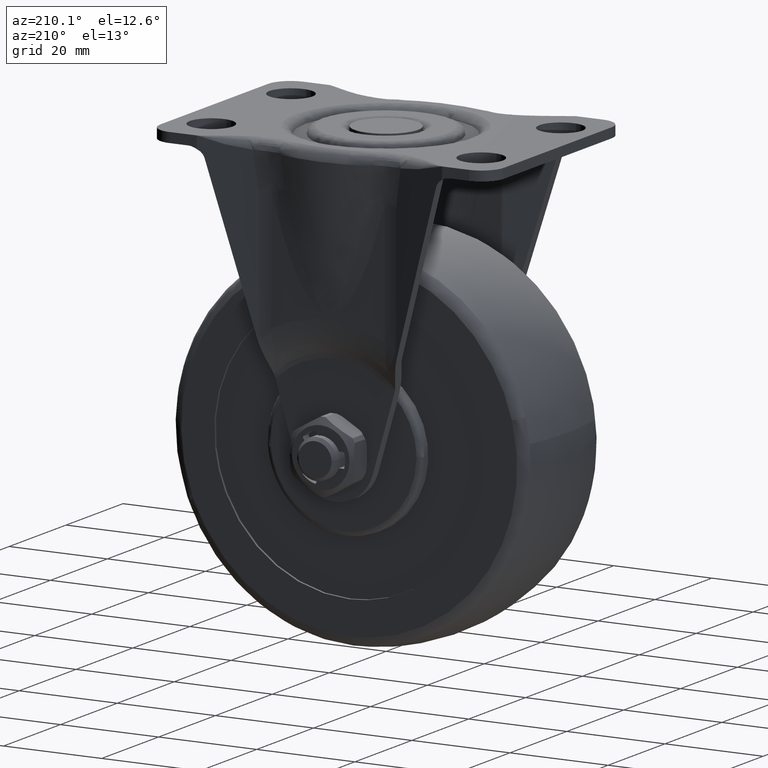
[diagram: clean part render]
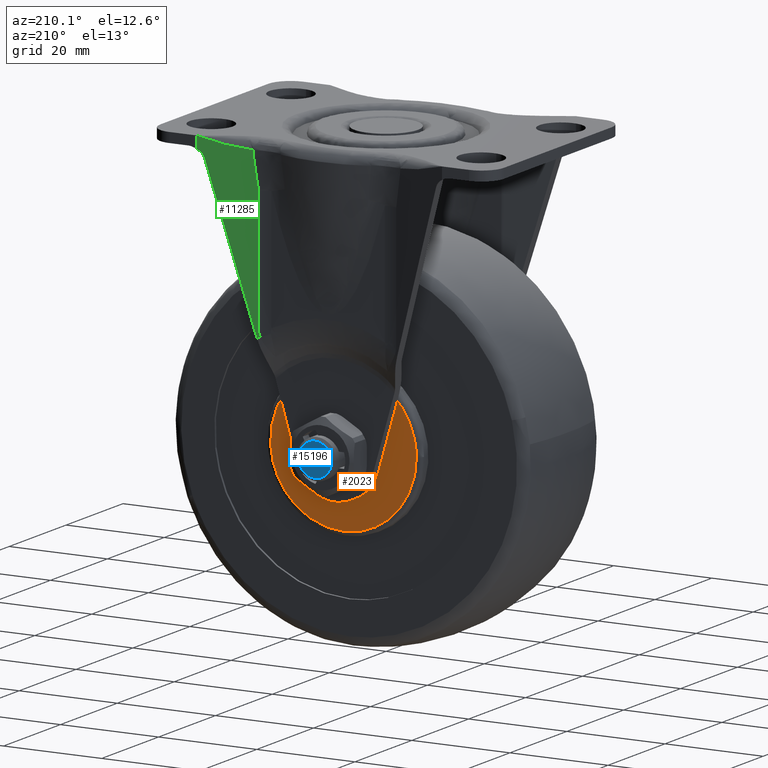
[diagram: same view with three faces highlighted in distinct colors, each labeled with its STEP entity id]
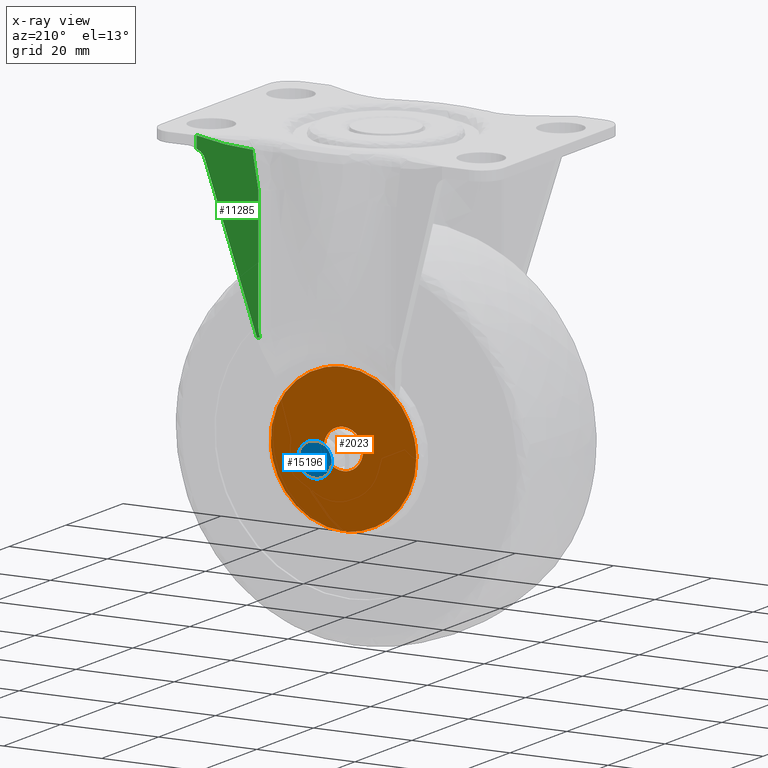
[diagram: x-ray of the same camera — body ghosted, the three highlighted faces saturated]
A machine part, auxiliary view with three faces highlighted in distinct colors.
The next image is the same camera in x-ray (body ghosted, the three faces saturated) — at least one of them is partly hidden behind the body in this view.
Their STEP definitions:

[orange] entity #2023 — the highlighted face is a freeform B-spline surface patch.
#496=CARTESIAN_POINT('',(-3.992539193671721,15.0,-55.255805841603113));
#497=VERTEX_POINT('',#496);
#503=CARTESIAN_POINT('',(0.0,15.0,-51.500000000000007));
#504=VERTEX_POINT('',#503);
#505=CARTESIAN_POINT('',(0.0,15.0,-51.500000000000007));
#506=CARTESIAN_POINT('',(-3.762824267136605,15.000000000000004,-51.500000000000007));
#507=CARTESIAN_POINT('',(-3.992539193671721,14.999999999999996,-55.255805841603113));
#515=(BOUNDED_CURVE()B_SPLINE_CURVE(2,(#505,#506,#507),.UNSPECIFIED.,.F.,.U.)B_SPLINE_CURVE_WITH_KNOTS((3,3),(0.500000000000000,0.739332962219716),.UNSPECIFIED.)CURVE()GEOMETRIC_REPRESENTATION_ITEM()RATIONAL_B_SPLINE_CURVE((1.0,0.719603993309236,0.976072041625511))REPRESENTATION_ITEM(''));
#516=EDGE_CURVE('',#504,#497,#515,.T.);
#518=CARTESIAN_POINT('',(3.972038105430888,15.0,-55.972136938827077));
#519=VERTEX_POINT('',#518);
#520=CARTESIAN_POINT('',(3.972038105430887,15.000000000000002,-55.972136938827084));
#521=CARTESIAN_POINT('',(4.000000000000001,14.999999999999998,-55.736896478809797));
#522=CARTESIAN_POINT('',(4.0,15.0,-55.500000000000000));
#523=CARTESIAN_POINT('',(4.000000000000000,14.999999999999995,-51.500000000000000));
#524=CARTESIAN_POINT('',(0.0,15.0,-51.500000000000007));
#532=(BOUNDED_CURVE()B_SPLINE_CURVE(2,(#520,#521,#522,#523,#524),.UNSPECIFIED.,.F.,.U.)B_SPLINE_CURVE_WITH_KNOTS((3,2,3),(0.229562473498622,0.250000000000000,0.500000000000000),.UNSPECIFIED.)CURVE()GEOMETRIC_REPRESENTATION_ITEM()RATIONAL_B_SPLINE_CURVE((0.956026754154521,0.976055948313704,1.0,0.707106781186548,1.0))REPRESENTATION_ITEM(''));
#533=EDGE_CURVE('',#519,#504,#532,.T.);
#577=CARTESIAN_POINT('',(0.0,15.0,-59.500000000000000));
#578=VERTEX_POINT('',#577);
#579=CARTESIAN_POINT('',(0.0,15.0,-59.500000000000000));
#580=CARTESIAN_POINT('',(3.552698103445112,14.999999999999998,-59.500000000000000));
#581=CARTESIAN_POINT('',(3.972038105430888,14.999999999999998,-55.972136938827077));
#589=(BOUNDED_CURVE()B_SPLINE_CURVE(2,(#579,#580,#581),.UNSPECIFIED.,.F.,.U.)B_SPLINE_CURVE_WITH_KNOTS((3,3),(0.0,0.229562473498622),.UNSPECIFIED.)CURVE()GEOMETRIC_REPRESENTATION_ITEM()RATIONAL_B_SPLINE_CURVE((1.0,0.731050832872843,0.956026754154521))REPRESENTATION_ITEM(''));
#590=EDGE_CURVE('',#578,#519,#589,.T.);
#592=CARTESIAN_POINT('',(-3.992539193671721,15.0,-55.255805841603127));
#593=CARTESIAN_POINT('',(-4.000000000000001,15.000000000000002,-55.377788946547469));
#594=CARTESIAN_POINT('',(-4.0,15.0,-55.500000000000000));
#595=CARTESIAN_POINT('',(-4.000000000000000,14.999999999999995,-59.500000000000007));
#596=CARTESIAN_POINT('',(0.0,15.0,-59.500000000000000));
#604=(BOUNDED_CURVE()B_SPLINE_CURVE(2,(#592,#593,#594,#595,#596),.UNSPECIFIED.,.F.,.U.)B_SPLINE_CURVE_WITH_KNOTS((3,2,3),(0.739332962219716,0.750000000000000,1.0),.UNSPECIFIED.)CURVE()GEOMETRIC_REPRESENTATION_ITEM()RATIONAL_B_SPLINE_CURVE((0.976072041625510,0.987502787877311,1.0,0.707106781186548,1.0))REPRESENTATION_ITEM(''));
#605=EDGE_CURVE('',#497,#578,#604,.T.);
#1673=CARTESIAN_POINT('',(14.813847937527630,14.999999999999980,-56.535538652324348));
#1674=VERTEX_POINT('',#1673);
#1675=CARTESIAN_POINT('',(0.0,15.0,-40.650002349065872));
#1676=VERTEX_POINT('',#1675);
#1677=CARTESIAN_POINT('',(14.813847937527624,14.999999999999977,-56.535538652324341));
#1678=CARTESIAN_POINT('',(14.849997650934148,15.000000000000002,-56.018400317236143));
#1679=CARTESIAN_POINT('',(14.849997650934140,15.0,-55.500000000000000));
#1680=CARTESIAN_POINT('',(14.849997650934135,14.999999999999995,-40.650002349065865));
#1681=CARTESIAN_POINT('',(0.0,15.0,-40.650002349065872));
#1689=(BOUNDED_CURVE()B_SPLINE_CURVE(2,(#1677,#1678,#1679,#1680,#1681),.UNSPECIFIED.,.F.,.U.)B_SPLINE_CURVE_WITH_KNOTS((3,2,3),(0.237833685875792,0.250000000000000,0.500000000000000),.UNSPECIFIED.)CURVE()GEOMETRIC_REPRESENTATION_ITEM()RATIONAL_B_SPLINE_CURVE((0.972879874992500,0.985746276380260,1.0,0.707106781186548,1.0))REPRESENTATION_ITEM(''));
#1690=EDGE_CURVE('',#1674,#1676,#1689,.T.);
#1692=CARTESIAN_POINT('',(-14.848825166168551,14.999999999999970,-55.313394336745532));
#1693=VERTEX_POINT('',#1692);
#1694=CARTESIAN_POINT('',(0.0,15.0,-40.650002349065872));
#1695=CARTESIAN_POINT('',(-14.664549838609330,14.999999999999998,-40.650002349065865));
#1696=CARTESIAN_POINT('',(-14.848825166168558,14.999999999999970,-55.313394336745532));
#1704=(BOUNDED_CURVE()B_SPLINE_CURVE(2,(#1694,#1695,#1696),.UNSPECIFIED.,.F.,.U.)B_SPLINE_CURVE_WITH_KNOTS((3,3),(0.500000000000000,0.747784295912330),.UNSPECIFIED.)CURVE()GEOMETRIC_REPRESENTATION_ITEM()RATIONAL_B_SPLINE_CURVE((1.0,0.709702639995251,0.994854295622381))REPRESENTATION_ITEM(''));
#1705=EDGE_CURVE('',#1676,#1693,#1704,.T.);
#1763=CARTESIAN_POINT('',(0.0,15.0,-70.349997650934142));
#1764=VERTEX_POINT('',#1763);
#1765=CARTESIAN_POINT('',(0.0,15.0,-70.349997650934142));
#1766=CARTESIAN_POINT('',(13.848169938098462,15.000000000000002,-70.349997650934142));
#1767=CARTESIAN_POINT('',(14.813847937527628,14.999999999999980,-56.535538652324348));
#1775=(BOUNDED_CURVE()B_SPLINE_CURVE(2,(#1765,#1766,#1767),.UNSPECIFIED.,.F.,.U.)B_SPLINE_CURVE_WITH_KNOTS((3,3),(0.0,0.237833685875792),.UNSPECIFIED.)CURVE()GEOMETRIC_REPRESENTATION_ITEM()RATIONAL_B_SPLINE_CURVE((1.0,0.721360504806287,0.972879874992500))REPRESENTATION_ITEM(''));
#1776=EDGE_CURVE('',#1764,#1674,#1775,.T.);
#1782=CARTESIAN_POINT('',(-14.848825166168551,14.999999999999973,-55.313394336745532));
#1783=CARTESIAN_POINT('',(-14.849997650934146,15.000000000000005,-55.406693484683487));
#1784=CARTESIAN_POINT('',(-14.849997650934140,15.0,-55.500000000000000));
#1785=CARTESIAN_POINT('',(-14.849997650934135,14.999999999999995,-70.349997650934156));
#1786=CARTESIAN_POINT('',(0.0,15.0,-70.349997650934142));
#1794=(BOUNDED_CURVE()B_SPLINE_CURVE(2,(#1782,#1783,#1784,#1785,#1786),.UNSPECIFIED.,.F.,.U.)B_SPLINE_CURVE_WITH_KNOTS((3,2,3),(0.747784295912331,0.750000000000000,1.0),.UNSPECIFIED.)CURVE()GEOMETRIC_REPRESENTATION_ITEM()RATIONAL_B_SPLINE_CURVE((0.994854295622383,0.997404141191298,1.0,0.707106781186548,1.0))REPRESENTATION_ITEM(''));
#1795=EDGE_CURVE('',#1693,#1764,#1794,.T.);
#2006=CARTESIAN_POINT('',(-16.332196979950460,15.0,-71.833513195105027));
#2007=CARTESIAN_POINT('',(-16.332196979950460,15.0,-39.166486804894980));
#2008=CARTESIAN_POINT('',(16.331676158849518,15.0,-71.833513195105027));
#2009=CARTESIAN_POINT('',(16.331676158849518,15.0,-39.166486804894980));
#2010=B_SPLINE_SURFACE_WITH_KNOTS('',1,1,((#2006,#2008),(#2007,#2009)),.UNSPECIFIED.,.F.,.F.,.U.,(2,2),(2,2),(0.0,32.667026390210047),(0.0,32.663873138799993),.UNSPECIFIED.);
#2011=ORIENTED_EDGE('',*,*,#1795,.F.);
#2012=ORIENTED_EDGE('',*,*,#1705,.F.);
#2013=ORIENTED_EDGE('',*,*,#1690,.F.);
#2014=ORIENTED_EDGE('',*,*,#1776,.F.);
#2015=EDGE_LOOP('',(#2011,#2012,#2013,#2014));
#2016=FACE_OUTER_BOUND('',#2015,.T.);
#2017=ORIENTED_EDGE('',*,*,#516,.T.);
#2018=ORIENTED_EDGE('',*,*,#605,.T.);
#2019=ORIENTED_EDGE('',*,*,#590,.T.);
#2020=ORIENTED_EDGE('',*,*,#533,.T.);
#2021=EDGE_LOOP('',(#2017,#2018,#2019,#2020));
#2022=FACE_BOUND('',#2021,.T.);
#2023=ADVANCED_FACE('',(#2016,#2022),#2010,.T.);

[blue] entity #15196 — the highlighted face is a freeform B-spline surface patch.
#12281=CARTESIAN_POINT('',(3.351407151478821,24.999986999974851,-55.898365542167873));
#12282=VERTEX_POINT('',#12281);
#12288=CARTESIAN_POINT('',(0.0,24.999987000000051,-52.125000000000000));
#12289=VERTEX_POINT('',#12288);
#12290=CARTESIAN_POINT('',(3.351407151478821,24.999986999974851,-55.898365542167866));
#12291=CARTESIAN_POINT('',(3.375000000000000,24.999987000000051,-55.699881404025632));
#12292=CARTESIAN_POINT('',(3.375000000000000,24.999987000000051,-55.500000000000000));
#12293=CARTESIAN_POINT('',(3.375000000000000,24.999987000000051,-52.124999999999993));
#12294=CARTESIAN_POINT('',(0.0,24.999987000000051,-52.125000000000000));
#12302=(BOUNDED_CURVE()B_SPLINE_CURVE(2,(#12290,#12291,#12292,#12293,#12294),.UNSPECIFIED.,.F.,.U.)B_SPLINE_CURVE_WITH_KNOTS((3,2,3),(0.229562473495641,0.250000000000000,0.500000000000000),.UNSPECIFIED.)CURVE()GEOMETRIC_REPRESENTATION_ITEM()RATIONAL_B_SPLINE_CURVE((0.956026754148680,0.976055948310213,1.0,0.707106781186548,1.0))REPRESENTATION_ITEM(''));
#12303=EDGE_CURVE('',#12282,#12289,#12302,.T.);
#12305=CARTESIAN_POINT('',(-3.368704944702452,24.999986999946390,-55.293961178659274));
#12306=VERTEX_POINT('',#12305);
#12307=CARTESIAN_POINT('',(0.0,24.999987000000051,-52.125000000000000));
#12308=CARTESIAN_POINT('',(-3.174882975037529,24.999987000000047,-52.125000000000000));
#12309=CARTESIAN_POINT('',(-3.368704944702452,24.999986999946390,-55.293961178659266));
#12317=(BOUNDED_CURVE()B_SPLINE_CURVE(2,(#12307,#12308,#12309),.UNSPECIFIED.,.F.,.U.)B_SPLINE_CURVE_WITH_KNOTS((3,3),(0.500000000000000,0.739332962200243),.UNSPECIFIED.)CURVE()GEOMETRIC_REPRESENTATION_ITEM()RATIONAL_B_SPLINE_CURVE((1.0,0.719603993332050,0.976072041583776))REPRESENTATION_ITEM(''));
#12318=EDGE_CURVE('',#12289,#12306,#12317,.T.);
#12352=CARTESIAN_POINT('',(0.0,24.999987000000051,-58.875000000000007));
#12353=VERTEX_POINT('',#12352);
#12354=CARTESIAN_POINT('',(-3.368704944702452,24.999986999946387,-55.293961178659266));
#12355=CARTESIAN_POINT('',(-3.375000000000000,24.999987000000047,-55.396884423458808));
#12356=CARTESIAN_POINT('',(-3.375000000000000,24.999987000000051,-55.500000000000000));
#12357=CARTESIAN_POINT('',(-3.375000000000000,24.999987000000051,-58.875000000000021));
#12358=CARTESIAN_POINT('',(0.0,24.999987000000051,-58.875000000000007));
#12366=(BOUNDED_CURVE()B_SPLINE_CURVE(2,(#12354,#12355,#12356,#12357,#12358),.UNSPECIFIED.,.F.,.U.)B_SPLINE_CURVE_WITH_KNOTS((3,2,3),(0.739332962200243,0.750000000000000,1.0),.UNSPECIFIED.)CURVE()GEOMETRIC_REPRESENTATION_ITEM()RATIONAL_B_SPLINE_CURVE((0.976072041583776,0.987502787854497,1.0,0.707106781186548,1.0))REPRESENTATION_ITEM(''));
#12367=EDGE_CURVE('',#12306,#12353,#12366,.T.);
#12369=CARTESIAN_POINT('',(0.0,24.999987000000051,-58.875000000000007));
#12370=CARTESIAN_POINT('',(2.997589024728582,24.999987000000051,-58.875000000000007));
#12371=CARTESIAN_POINT('',(3.351407151478821,24.999986999974851,-55.898365542167866));
#12379=(BOUNDED_CURVE()B_SPLINE_CURVE(2,(#12369,#12370,#12371),.UNSPECIFIED.,.F.,.U.)B_SPLINE_CURVE_WITH_KNOTS((3,3),(0.0,0.229562473495641),.UNSPECIFIED.)CURVE()GEOMETRIC_REPRESENTATION_ITEM()RATIONAL_B_SPLINE_CURVE((1.0,0.731050832876335,0.956026754148680))REPRESENTATION_ITEM(''));
#12380=EDGE_CURVE('',#12353,#12282,#12379,.T.);
#15185=CARTESIAN_POINT('',(-3.712080405780806,24.999987000000051,-51.787837513082813));
#15186=CARTESIAN_POINT('',(-3.712080405780806,24.999987000000051,-59.212162667966311));
#15187=CARTESIAN_POINT('',(3.712101105728878,24.999987000000051,-51.787837513082813));
#15188=CARTESIAN_POINT('',(3.712101105728878,24.999987000000051,-59.212162667966311));
#15189=B_SPLINE_SURFACE_WITH_KNOTS('',1,1,((#15185,#15187),(#15186,#15188)),.UNSPECIFIED.,.F.,.F.,.U.,(2,2),(2,2),(0.0,7.424325154883497),(0.0,7.424181511509684),.UNSPECIFIED.);
#15190=ORIENTED_EDGE('',*,*,#12367,.F.);
#15191=ORIENTED_EDGE('',*,*,#12318,.F.);
#15192=ORIENTED_EDGE('',*,*,#12303,.F.);
#15193=ORIENTED_EDGE('',*,*,#12380,.F.);
#15194=EDGE_LOOP('',(#15190,#15191,#15192,#15193));
#15195=FACE_OUTER_BOUND('',#15194,.T.);
#15196=ADVANCED_FACE('',(#15195),#15189,.F.);

[green] entity #11285 — the highlighted face is a freeform B-spline surface patch.
#4551=CARTESIAN_POINT('',(24.999767663066550,23.500000000000000,-2.442348173726905));
#4552=VERTEX_POINT('',#4551);
#4596=CARTESIAN_POINT('',(23.583805440562450,23.134333930029602,-4.005368289042855));
#4597=VERTEX_POINT('',#4596);
#4605=CARTESIAN_POINT('',(24.999767663066550,23.500000000000000,-2.442348173726880));
#4606=CARTESIAN_POINT('',(24.836773559679070,23.457907483500051,-2.519238642344098));
#4607=CARTESIAN_POINT('',(24.681281725364819,23.417752395276299,-2.607642458246619));
#4608=CARTESIAN_POINT('',(24.461541363916059,23.361005405061590,-2.760961933800971));
#4609=CARTESIAN_POINT('',(24.390554450911861,23.342673344300980,-2.815536538513010));
#4610=CARTESIAN_POINT('',(24.287875532448989,23.316156961316750,-2.903232337384202));
#4611=CARTESIAN_POINT('',(24.254283919871181,23.307482073837349,-2.933438301996856));
#4612=CARTESIAN_POINT('',(24.188454810189409,23.290481993295359,-2.995928322738467));
#4613=CARTESIAN_POINT('',(24.156114973722332,23.282130371538511,-3.028324778809479));
#4614=CARTESIAN_POINT('',(23.999595163856441,23.241709813110798,-3.194196944014139));
#4615=CARTESIAN_POINT('',(23.890773866251230,23.213607187495541,-3.339159535019082));
#4616=CARTESIAN_POINT('',(23.776840604833922,23.184184419515390,-3.536890945893611));
#4617=CARTESIAN_POINT('',(23.755163157483072,23.178586313256769,-3.577267030758175));
#4618=CARTESIAN_POINT('',(23.714086391092330,23.167978417442551,-3.659723481584770));
#4619=CARTESIAN_POINT('',(23.694704632435052,23.162973162779188,-3.701789966354940));
#4620=CARTESIAN_POINT('',(23.640599751263959,23.149000813129160,-3.829234154336709));
#4621=CARTESIAN_POINT('',(23.609689781984091,23.141018448338759,-3.916284578284094));
#4622=CARTESIAN_POINT('',(23.583805440562450,23.134333930029602,-4.005368289042855));
#4623=B_SPLINE_CURVE_WITH_KNOTS('',3,(#4605,#4606,#4607,#4608,#4609,#4610,#4611,#4612,#4613,#4614,#4615,#4616,#4617,#4618,#4619,#4620,#4621,#4622),.UNSPECIFIED.,.F.,.U.,(4,2,2,2,2,2,2,2,4),(0.0,0.250000000000000,0.375000000000000,0.437500000000002,0.500000000000004,0.750000000000003,0.812500000000002,0.875000000000002,1.0),.UNSPECIFIED.);
#4624=EDGE_CURVE('',#4552,#4597,#4623,.T.);
#5998=CARTESIAN_POINT('',(14.050382198494100,20.672368946156698,-9.168351344744030));
#5999=VERTEX_POINT('',#5998);
#6066=CARTESIAN_POINT('',(14.948957035425440,20.904421979756648,-2.966122842771130));
#6067=VERTEX_POINT('',#6066);
#6081=CARTESIAN_POINT('',(14.050382198494100,20.672368946156698,-9.168351344744030));
#6082=CARTESIAN_POINT('',(14.501505919331585,20.788869680037404,-6.126964767843191));
#6083=CARTESIAN_POINT('',(14.948957035425440,20.904421979756648,-2.966122842771130));
#6091=(BOUNDED_CURVE()B_SPLINE_CURVE(2,(#6081,#6082,#6083),.UNSPECIFIED.,.F.,.U.)CURVE()GEOMETRIC_REPRESENTATION_ITEM()QUASI_UNIFORM_CURVE()RATIONAL_B_SPLINE_CURVE((1.0,0.999923491371642,1.0))REPRESENTATION_ITEM(''));
#6092=EDGE_CURVE('',#5999,#6067,#6091,.T.);
#6161=CARTESIAN_POINT('',(15.017111776294801,20.922022644412451,-1.977302473746725));
#6162=VERTEX_POINT('',#6161);
#6176=CARTESIAN_POINT('',(14.948957035425440,20.904421979756648,-2.966122842771130));
#6177=CARTESIAN_POINT('',(14.994945736639060,20.916298361321459,-2.641253802004219));
#6178=CARTESIAN_POINT('',(15.018217924392619,20.922308302335590,-2.311759791924331));
#6179=CARTESIAN_POINT('',(15.017111776294801,20.922022644412451,-1.977302473746735));
#6180=QUASI_UNIFORM_CURVE('',3,(#6176,#6177,#6178,#6179),.UNSPECIFIED.,.F.,.U.);
#6181=EDGE_CURVE('',#6067,#6162,#6180,.T.);
#8755=CARTESIAN_POINT('',(24.999767663066500,23.500000000000000,0.0));
#8756=VERTEX_POINT('',#8755);
#8757=CARTESIAN_POINT('',(15.017111776294801,20.922022644412440,-1.977302473746724));
#8758=CARTESIAN_POINT('',(18.344663738552029,21.781348429608300,-1.823418477515723));
#8759=CARTESIAN_POINT('',(21.672215700809289,22.640674214804129,-0.911709238757861));
#8760=CARTESIAN_POINT('',(24.999767663066550,23.500000000000000,0.0));
#8761=B_SPLINE_CURVE_WITH_KNOTS('',3,(#8757,#8758,#8759,#8760),.UNSPECIFIED.,.F.,.U.,(4,4),(0.0,0.911709238757861),.UNSPECIFIED.);
#8762=EDGE_CURVE('',#6162,#8756,#8761,.T.);
#9636=CARTESIAN_POINT('',(14.050382198494100,20.672368946156698,-33.940678649712048));
#9637=VERTEX_POINT('',#9636);
#9638=CARTESIAN_POINT('',(14.050382198494100,20.672368946156698,-33.940678649712048));
#9639=CARTESIAN_POINT('',(14.050382198494100,20.672368946156698,-9.168351344744030));
#9640=QUASI_UNIFORM_CURVE('',1,(#9638,#9639),.UNSPECIFIED.,.F.,.U.);
#9641=EDGE_CURVE('',#9637,#5999,#9640,.T.);
#9707=CARTESIAN_POINT('',(13.739133027224121,20.591990204809651,-35.815417850268553));
#9708=VERTEX_POINT('',#9707);
#9740=CARTESIAN_POINT('',(13.739133027224121,20.591990204809651,-35.815417850268553));
#9741=CARTESIAN_POINT('',(13.849548488915250,20.620504516349101,-35.513328554749542));
#9742=CARTESIAN_POINT('',(13.926743109238551,20.640439690457448,-35.205356019785917));
#9743=CARTESIAN_POINT('',(14.027192828875579,20.666380392564850,-34.579858539246267));
#9744=CARTESIAN_POINT('',(14.050382198494081,20.672368946156709,-34.262321953280711));
#9745=CARTESIAN_POINT('',(14.050382198494081,20.672368946156698,-33.940678649712048));
#9746=B_SPLINE_CURVE_WITH_KNOTS('',3,(#9740,#9741,#9742,#9743,#9744,#9745),.UNSPECIFIED.,.F.,.U.,(4,2,4),(0.0,0.500000000000000,1.0),.UNSPECIFIED.);
#9747=EDGE_CURVE('',#9708,#9637,#9746,.T.);
#10045=CARTESIAN_POINT('',(14.308474785298920,20.739020231343201,-35.927404080009147));
#10046=VERTEX_POINT('',#10045);
#10047=CARTESIAN_POINT('',(14.308474785298930,20.739020231343179,-35.927404080009261));
#10048=CARTESIAN_POINT('',(14.024615967138839,20.665714929257167,-35.868287985717458));
#10049=CARTESIAN_POINT('',(13.739133027224129,20.591990204809640,-35.815417850268581));
#10057=(BOUNDED_CURVE()B_SPLINE_CURVE(2,(#10047,#10048,#10049),.UNSPECIFIED.,.F.,.U.)CURVE()GEOMETRIC_REPRESENTATION_ITEM()QUASI_UNIFORM_CURVE()RATIONAL_B_SPLINE_CURVE((1.0,0.999920457686110,1.0))REPRESENTATION_ITEM(''));
#10058=EDGE_CURVE('',#10046,#9708,#10057,.T.);
#10480=CARTESIAN_POINT('',(24.999767663066500,23.500000000000000,0.0));
#10481=CARTESIAN_POINT('',(24.999767663066550,23.500000000000000,-2.442348173726905));
#10482=QUASI_UNIFORM_CURVE('',1,(#10480,#10481),.UNSPECIFIED.,.F.,.U.);
#10483=EDGE_CURVE('',#8756,#4552,#10482,.T.);
#11265=CARTESIAN_POINT('',(13.176664072099630,20.446735049670700,-37.721976157867523));
#11266=CARTESIAN_POINT('',(25.562235812767678,23.645254947141911,-37.721976157867523));
#11267=CARTESIAN_POINT('',(13.176664072099630,20.446735049670700,1.794574647586548));
#11268=CARTESIAN_POINT('',(25.562235812767678,23.645254947141911,1.794574647586548));
#11269=B_SPLINE_SURFACE_WITH_KNOTS('',1,1,((#11265,#11267),(#11266,#11268)),.UNSPECIFIED.,.F.,.F.,.U.,(2,2),(2,2),(0.0,12.791908257869659),(0.0,39.516550805454067),.UNSPECIFIED.);
#11270=ORIENTED_EDGE('',*,*,#9641,.T.);
#11271=ORIENTED_EDGE('',*,*,#6092,.T.);
#11272=ORIENTED_EDGE('',*,*,#6181,.T.);
#11273=ORIENTED_EDGE('',*,*,#8762,.T.);
#11274=ORIENTED_EDGE('',*,*,#10483,.T.);
#11275=ORIENTED_EDGE('',*,*,#4624,.T.);
#11276=CARTESIAN_POINT('',(14.308474785298920,20.739020231343201,-35.927404080009147));
#11277=CARTESIAN_POINT('',(23.583805440562450,23.134333930029602,-4.005368289042855));
#11278=QUASI_UNIFORM_CURVE('',1,(#11276,#11277),.UNSPECIFIED.,.F.,.U.);
#11279=EDGE_CURVE('',#10046,#4597,#11278,.T.);
#11280=ORIENTED_EDGE('',*,*,#11279,.F.);
#11281=ORIENTED_EDGE('',*,*,#10058,.T.);
#11282=ORIENTED_EDGE('',*,*,#9747,.T.);
#11283=EDGE_LOOP('',(#11270,#11271,#11272,#11273,#11274,#11275,#11280,#11281,#11282));
#11284=FACE_OUTER_BOUND('',#11283,.T.);
#11285=ADVANCED_FACE('',(#11284),#11269,.F.);